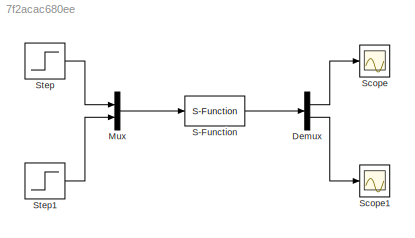
MODEL slx_7f2acac680ee
KIND model
BLOCK [Demux] Demux
  DisplayOption = bar
  Outputs = 2
  Ports = [1, 2]
BLOCK [Mux] Mux
  DisplayOption = bar
  Inputs = 2
  Ports = [2, 1]
BLOCK [S-Function] S-Function
  EnableBusSupport = off
  FunctionName = sistem_continuu
  Parameters = A,B,C,D
  Ports = [1, 1]
BLOCK [Scope] Scope
  DataFormat = StructureWithTime
  Floating = off
  NumInputPorts = 1
  Ports = [1]
  SampleTime = 0
  ShowLegends = off
BLOCK [Scope] Scope1
  DataFormat = StructureWithTime
  Floating = off
  NumInputPorts = 1
  Ports = [1]
  SampleTime = 0
  SaveName = ScopeData1
  ShowLegends = off
BLOCK [Step] Step
  SampleTime = 0
  ZeroCross = off
BLOCK [Step] Step1
  SampleTime = 0
  ZeroCross = off
LINE Demux:1 -> Scope:1
LINE Demux:2 -> Scope1:1
LINE Mux:1 -> S-Function:1
LINE S-Function:1 -> Demux:1
LINE Step1:1 -> Mux:2
LINE Step:1 -> Mux:1
